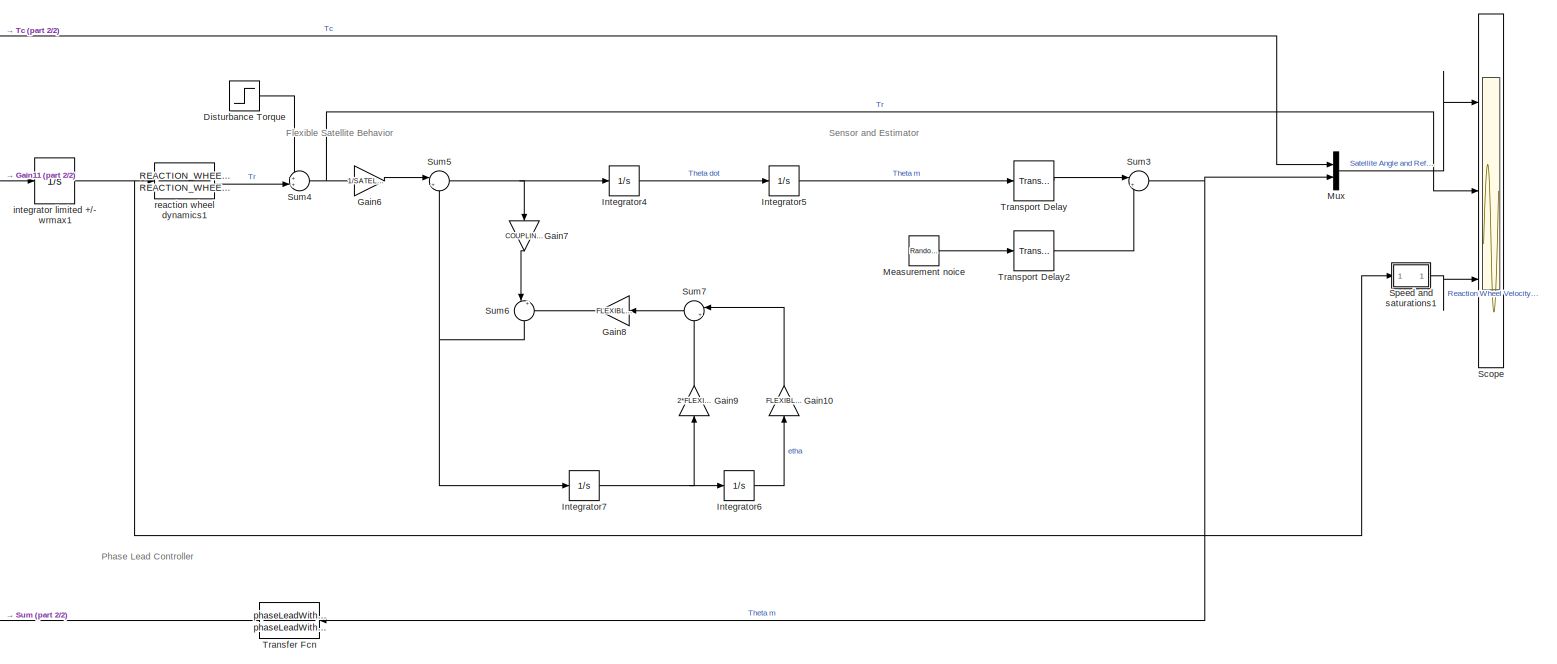
[diagram: root canvas - part 1/2, right side, full height]
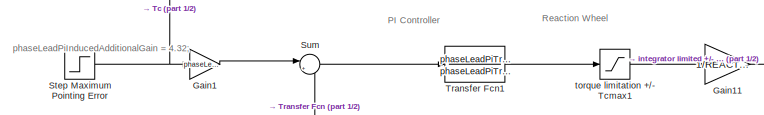
[diagram: root canvas - part 2/2, top left region]
MODEL slx_28d7abe938c0
KIND model
CONFIG AbsTol = auto
CONFIG EnableMultiTasking = off
CONFIG FixedStep = auto
CONFIG MaxStep = auto
CONFIG MinStep = auto
CONFIG RelTol = 1e-3
CONFIG SampleTimeConstraint = Unconstrained
CONFIG SolverName = VariableStepAuto
CONFIG StartTime = 0.0
CONFIG StopTime = 200
BLOCK [Step] Disturbance Torque
  After = DISTURBANCE_TORQUE
  SampleTime = 0
  Time = DISTURBANCE_TORQUE_DELAY
BLOCK [Gain] Gain1
  Gain = phaseLeadWithPiFeedForwardGain
BLOCK [Gain] Gain10
  Gain = FLEXIBLE_MODE_FREQUENCY
  NameLocation = right
BLOCK [Gain] Gain11
  Gain = 1/REACTION_WHEEL_INERTIA
BLOCK [Gain] Gain6
  Gain = 1/SATELLITE_INERTIA
BLOCK [Gain] Gain7
  Gain = COUPLING_COEFFICIENT
  NameLocation = left
BLOCK [Gain] Gain8
  Gain = FLEXIBLE_MODE_FREQUENCY
  NameLocation = top
BLOCK [Gain] Gain9
  Gain = 2*FLEXIBLE_MODE_DAMPING_RATIO
  NameLocation = right
BLOCK [Integrator] Integrator4
  Ports = [1, 1]
BLOCK [Integrator] Integrator5
  Ports = [1, 1]
BLOCK [Integrator] Integrator6
  InitialCondition = INITIAL_CONDITION_ON_STATE
  Ports = [1, 1]
BLOCK [Integrator] Integrator7
  Ports = [1, 1]
BLOCK [RandomNumber] Measurement noice
  SampleTime = 0.01
  Variance = MEASUREMENT_NOISE_VARIANCE
BLOCK [Mux] Mux
  DisplayOption = bar
  Inputs = 2
  Ports = [2, 1]
BLOCK [Scope] Scope
  Floating = off
  NumInputPorts = 3
  Ports = [3]
  ScopeSpecificationString = Simulink.scopes.TimeScopeBlockCfg('CurrentConfiguration', extmgr.ConfigurationSet(extmgr.Configuration('Core','General UI',true),extmgr.Configuration('Core','Source UI',true),extmgr.Configuration('Sources','WiredSimulink',true),extmgr.Configuration('Visuals','Time Domain',true,'SerializedDisplays',{struct('MinYLimReal','-0.01123','MaxYLimReal','0.1003','YLabelReal','','MinYLimMag','0.00000','MaxYL...<+2894ch>
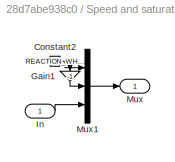
BLOCK [SubSystem] Speed and saturations1
  Ports = [1, 1]
  RequestExecContextInheritance = off
BLOCK [Constant] Speed and saturations1/Constant2
  Value = REACTION_WHEEL_VELOCITY_SATURATION
BLOCK [Gain] Speed and saturations1/Gain1
  Gain = -1
  NameLocation = left
BLOCK [Inport] Speed and saturations1/In
BLOCK [Outport] Speed and saturations1/Mux
BLOCK [Mux] Speed and saturations1/Mux1
  DisplayOption = bar
  Inputs = 3
  Ports = [3, 1]
BLOCK [Step] Step Maximum Pointing Error
  After = MODAL_CONTROL_WITH_INTEGRATOR_MAXIMUM_TOLERABLE_POINTING_ERROR
  SampleTime = 0
  Time = 0
BLOCK [Sum] Sum
  Inputs = |+-
  Ports = [2, 1]
BLOCK [Sum] Sum3
  Inputs = |++
  Ports = [2, 1]
BLOCK [Sum] Sum4
  Inputs = ++|
  Ports = [2, 1]
BLOCK [Sum] Sum5
  Inputs = |++
  Ports = [2, 1]
BLOCK [Sum] Sum6
  Inputs = |+-
  NameLocation = left
  Ports = [2, 1]
BLOCK [Sum] Sum7
  Inputs = |++
  NameLocation = top
  Ports = [2, 1]
BLOCK [TransferFcn] Transfer Fcn
  Denominator = phaseLeadWithPiControllerTransferFunctionDenominator
  NameLocation = top
  Numerator = phaseLeadWithPiControllerTransferFunctionNumerator
BLOCK [TransferFcn] Transfer Fcn1
  Denominator = phaseLeadPiTransferFunctionDenominator
  Numerator = phaseLeadPiTransferFunctionNumerator
BLOCK [TransportDelay] Transport Delay
  DelayTime = MEASUREMENT_DELAY
  Ports = [1, 1]
BLOCK [TransportDelay] Transport Delay2
  DelayTime = STAR_TRACKER_NOISE_DELAY
  Ports = [1, 1]
BLOCK [Integrator] integrator limited +//- wrmax1
  LimitOutput = on
  LowerSaturationLimit = -REACTION_WHEEL_VELOCITY_SATURATION
  Ports = [1, 1]
  UpperSaturationLimit = REACTION_WHEEL_VELOCITY_SATURATION
BLOCK [TransferFcn] reaction wheel dynamics1
  Denominator = REACTION_WHEEL_DYNAMICS_DENOMINATOR
  Numerator = REACTION_WHEEL_DYNAMICS_NUMERATOR
BLOCK [Saturate] torque limitation +//- Tcmax1
  LowerLimit = -COMMANDED_TORQUE_SATURATION
  UpperLimit = COMMANDED_TORQUE_SATURATION
ANNOTATION (root): Flexible Satellite Behavior
ANNOTATION (root): PI Controller
ANNOTATION (root): Phase Lead Controller
ANNOTATION (root): Reaction Wheel
ANNOTATION (root): Sensor and Estimator
ANNOTATION (root): phaseLeadPiInducedAdditionalGain = 4.32;
LINE Disturbance Torque:1 -> Sum4:1
LINE Gain10:1 -> Sum7:1
LINE Gain11:1 -> integrator limited +//- wrmax1:1
LINE Gain1:1 -> Sum:1
LINE Gain6:1 -> Sum5:1
LINE Gain7:1 -> Sum6:1
LINE Gain8:1 -> Sum6:2
LINE Gain9:1 -> Sum7:2
LINE Integrator4:1 -> Integrator5:1
LINE Integrator5:1 -> Transport Delay:1
LINE Integrator6:1 -> Gain10:1
NET Integrator7:1 -> Gain9:1, Integrator6:1
LINE Measurement noice:1 -> Transport Delay2:1
LINE Mux:1 -> Scope:1
NET Speed and saturations1/Constant2:1 -> Speed and saturations1/Gain1:1, Speed and saturations1/Mux1:1
LINE Speed and saturations1/Gain1:1 -> Speed and saturations1/Mux1:2
LINE Speed and saturations1/In:1 -> Speed and saturations1/Mux1:3
LINE Speed and saturations1/Mux1:1 -> Speed and saturations1/Mux:1
LINE Speed and saturations1:1 -> Scope:3
NET Step Maximum Pointing Error:1 -> Gain1:1, Mux:1
NET Sum3:1 -> Mux:2, Transfer Fcn:1
NET Sum4:1 -> Gain6:1, Scope:2
NET Sum5:1 -> Gain7:1, Integrator4:1
NET Sum6:1 -> Integrator7:1, Sum5:2
LINE Sum7:1 -> Gain8:1
LINE Sum:1 -> Transfer Fcn1:1
LINE Transfer Fcn1:1 -> torque limitation +//- Tcmax1:1
LINE Transfer Fcn:1 -> Sum:2
LINE Transport Delay2:1 -> Sum3:2
LINE Transport Delay:1 -> Sum3:1
NET integrator limited +//- wrmax1:1 -> Speed and saturations1:1, reaction wheel dynamics1:1
LINE reaction wheel dynamics1:1 -> Sum4:2
LINE torque limitation +//- Tcmax1:1 -> Gain11:1
note: NET lines group one-source signal fan-out (src -> all destinations, sorted); 1:1 wires keep LINE
